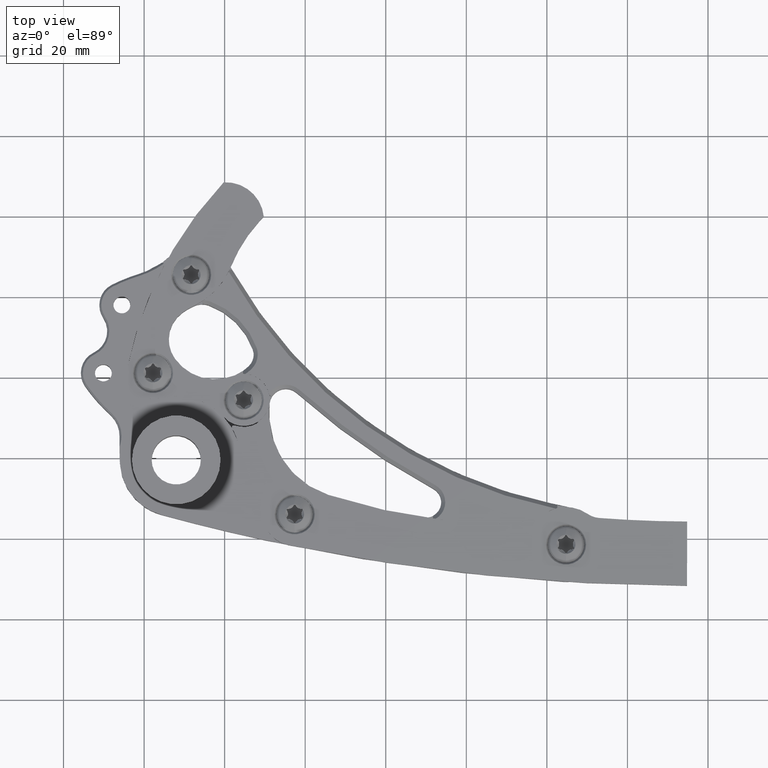
[diagram: clean part render]
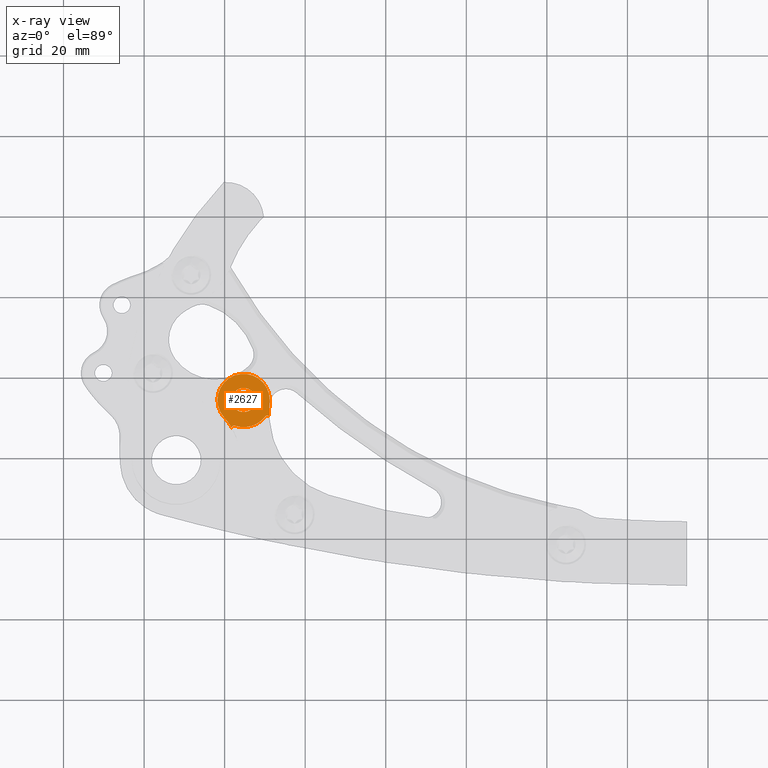
[diagram: x-ray — body ghosted, one internal face saturated and labeled with its STEP entity id]
A machine part, top view, then the same camera in x-ray: the body is ghosted and one INTERNAL B-rep face — a face not visible from any outside direction — is saturated and labeled: STEP entity #2627.
In plain terms, the highlighted planar face has unit normal (0, 0, -1).
Its self-contained STEP definition (entity closure, byte-faithful):
#75 = AXIS2_PLACEMENT_3D ( 'NONE', #3867, #373, #6837 ) ;
#369 = DIRECTION ( 'NONE',  ( 0.0000000000000000000, 0.0000000000000000000, -1.000000000000000000 ) ) ;
#373 = DIRECTION ( 'NONE',  ( -0.0000000000000000000, -0.0000000000000000000, 1.000000000000000000 ) ) ;
#523 = CIRCLE ( 'NONE', #6834, 0.8364791617790193756 ) ;
#582 = EDGE_CURVE ( 'NONE', #7625, #8082, #523, .T. ) ;
#745 = CARTESIAN_POINT ( 'NONE',  ( 0.9145700963486043111, 0.5923259528790497663, 0.1574803149606300579 ) ) ;
#914 = DIRECTION ( 'NONE',  ( 1.000000000000000000, 0.0000000000000000000, 0.0000000000000000000 ) ) ;
#955 = CIRCLE ( 'NONE', #8458, 0.1181102362204724116 ) ;
#1007 = CARTESIAN_POINT ( 'NONE',  ( 0.5701528258913531877, 0.3415842335883935710, 0.1574803149606300579 ) ) ;
#1047 = DIRECTION ( 'NONE',  ( -0.0000000000000000000, -0.0000000000000000000, 1.000000000000000000 ) ) ;
#1080 = EDGE_CURVE ( 'NONE', #8082, #1192, #1104, .T. ) ;
#1104 = CIRCLE ( 'NONE', #75, 0.01968503937007875723 ) ;
#1128 = CARTESIAN_POINT ( 'NONE',  ( 0.6586645845375798114, 0.5923259528790497663, 0.1574803149606300579 ) ) ;
#1164 = DIRECTION ( 'NONE',  ( 0.0000000000000000000, 0.0000000000000000000, -1.000000000000000000 ) ) ;
#1192 = VERTEX_POINT ( 'NONE', #6722 ) ;
#1706 = AXIS2_PLACEMENT_3D ( 'NONE', #3750, #3035, #7339 ) ;
#1714 = DIRECTION ( 'NONE',  ( 1.000000000000000000, 0.0000000000000000000, 0.0000000000000000000 ) ) ;
#1768 = DIRECTION ( 'NONE',  ( 1.000000000000000000, 0.0000000000000000000, 0.0000000000000000000 ) ) ;
#1815 = EDGE_CURVE ( 'NONE', #7021, #6680, #8641, .T. ) ;
#1887 = CARTESIAN_POINT ( 'NONE',  ( 0.6586645845375798114, 0.5923259528790497663, 0.1574803149606300579 ) ) ;
#1950 = VERTEX_POINT ( 'NONE', #3134 ) ;
#2226 = CARTESIAN_POINT ( 'NONE',  ( 0.0000000000000000000, 0.0000000000000000000, 0.1574803149606300579 ) ) ;
#2263 = DIRECTION ( 'NONE',  ( -0.0000000000000000000, -0.0000000000000000000, 1.000000000000000000 ) ) ;
#2493 = FACE_OUTER_BOUND ( 'NONE', #8584, .T. ) ;
#2601 = EDGE_CURVE ( 'NONE', #6286, #7021, #8281, .T. ) ;
#2602 = CIRCLE ( 'NONE', #4747, 0.2559055118110245552 ) ;
#2627 = ADVANCED_FACE ( 'NONE', ( #2493, #4001 ), #7853, .F. ) ;
#2701 = EDGE_LOOP ( 'NONE', ( #6258, #6646 ) ) ;
#2810 = ORIENTED_EDGE ( 'NONE', *, *, #9662, .T. ) ;
#2827 = CARTESIAN_POINT ( 'NONE',  ( 0.5439152429436742153, 0.3230217728769143593, 0.1574803149606300579 ) ) ;
#3035 = DIRECTION ( 'NONE',  ( -0.0000000000000000000, -0.0000000000000000000, 1.000000000000000000 ) ) ;
#3054 = DIRECTION ( 'NONE',  ( 1.000000000000000000, 0.0000000000000000000, 0.0000000000000000000 ) ) ;
#3134 = CARTESIAN_POINT ( 'NONE',  ( 0.5405543483171074692, 0.5923259528790497663, 0.1574803149606300579 ) ) ;
#3136 = VERTEX_POINT ( 'NONE', #8462 ) ;
#3167 = DIRECTION ( 'NONE',  ( 1.000000000000000000, 1.868163743359631279E-15, 0.0000000000000000000 ) ) ;
#3168 = CARTESIAN_POINT ( 'NONE',  ( 0.6586645845375798114, 0.5923259528790497663, 0.1574803149606300579 ) ) ;
#3237 = DIRECTION ( 'NONE',  ( 1.000000000000000000, 0.0000000000000000000, 0.0000000000000000000 ) ) ;
#3285 = EDGE_CURVE ( 'NONE', #3136, #8109, #2602, .T. ) ;
#3512 = VERTEX_POINT ( 'NONE', #4544 ) ;
#3542 = CARTESIAN_POINT ( 'NONE',  ( 0.5636002823137529205, 0.3230217728769143593, 0.1574803149606300579 ) ) ;
#3545 = AXIS2_PLACEMENT_3D ( 'NONE', #1887, #1164, #1714 ) ;
#3549 = AXIS2_PLACEMENT_3D ( 'NONE', #3640, #9589, #9560 ) ;
#3640 = CARTESIAN_POINT ( 'NONE',  ( 0.6586645845375798114, 0.5923259528790497663, 0.1574803149606300579 ) ) ;
#3750 = CARTESIAN_POINT ( 'NONE',  ( 0.5636002823137529205, 0.3230217728769143593, 0.1574803149606300579 ) ) ;
#3867 = CARTESIAN_POINT ( 'NONE',  ( 0.8877492979117309613, 0.4217910385001784612, 0.1574803149606300579 ) ) ;
#3899 = CARTESIAN_POINT ( 'NONE',  ( 0.6586645845375798114, 0.5923259528790497663, 0.1574803149606300579 ) ) ;
#3952 = CARTESIAN_POINT ( 'NONE',  ( 0.6586645845375798114, 0.5923259528790497663, 0.1574803149606300579 ) ) ;
#4001 = FACE_BOUND ( 'NONE', #2701, .T. ) ;
#4275 = AXIS2_PLACEMENT_3D ( 'NONE', #2226, #1047, #1768 ) ;
#4349 = CIRCLE ( 'NONE', #5283, 0.2659055118110237315 ) ;
#4484 = CARTESIAN_POINT ( 'NONE',  ( 0.9126951216396621547, 0.5614048080928358830, 0.1574803149606300579 ) ) ;
#4544 = CARTESIAN_POINT ( 'NONE',  ( 0.4683837045600565685, 0.4212095664917691051, 0.1574803149606300579 ) ) ;
#4650 = DIRECTION ( 'NONE',  ( 1.000000000000000000, 0.0000000000000000000, 0.0000000000000000000 ) ) ;
#4734 = ORIENTED_EDGE ( 'NONE', *, *, #8838, .F. ) ;
#4747 = AXIS2_PLACEMENT_3D ( 'NONE', #6966, #6747, #3054 ) ;
#4909 = ORIENTED_EDGE ( 'NONE', *, *, #582, .F. ) ;
#5283 = AXIS2_PLACEMENT_3D ( 'NONE', #3952, #8493, #3237 ) ;
#5375 = CARTESIAN_POINT ( 'NONE',  ( 1.743045547613837343, 0.4603327636144783908, 0.1574803149606300579 ) ) ;
#5432 = DIRECTION ( 'NONE',  ( 0.0000000000000000000, 0.0000000000000000000, -1.000000000000000000 ) ) ;
#5677 = CIRCLE ( 'NONE', #3549, 0.2559055118110245552 ) ;
#5701 = DIRECTION ( 'NONE',  ( 1.000000000000000000, 0.0000000000000000000, 0.0000000000000000000 ) ) ;
#5841 = ORIENTED_EDGE ( 'NONE', *, *, #1815, .F. ) ;
#6154 = EDGE_CURVE ( 'NONE', #8109, #7625, #5677, .T. ) ;
#6231 = AXIS2_PLACEMENT_3D ( 'NONE', #3899, #369, #914 ) ;
#6239 = CIRCLE ( 'NONE', #4275, 0.6299212598425188991 ) ;
#6258 = ORIENTED_EDGE ( 'NONE', *, *, #8582, .T. ) ;
#6286 = VERTEX_POINT ( 'NONE', #1007 ) ;
#6646 = ORIENTED_EDGE ( 'NONE', *, *, #9345, .T. ) ;
#6680 = VERTEX_POINT ( 'NONE', #6758 ) ;
#6689 = ORIENTED_EDGE ( 'NONE', *, *, #3285, .F. ) ;
#6722 = CARTESIAN_POINT ( 'NONE',  ( 0.8719590640149738059, 0.4335455818127563199, 0.1574803149606300579 ) ) ;
#6747 = DIRECTION ( 'NONE',  ( 0.0000000000000000000, 0.0000000000000000000, -1.000000000000000000 ) ) ;
#6758 = CARTESIAN_POINT ( 'NONE',  ( 0.5465214858800029329, 0.3132332343048863654, 0.1574803149606300579 ) ) ;
#6834 = AXIS2_PLACEMENT_3D ( 'NONE', #5375, #2263, #5701 ) ;
#6837 = DIRECTION ( 'NONE',  ( 1.000000000000000000, 0.0000000000000000000, 0.0000000000000000000 ) ) ;
#6966 = CARTESIAN_POINT ( 'NONE',  ( 0.6586645845375798114, 0.5923259528790497663, 0.1574803149606300579 ) ) ;
#7021 = VERTEX_POINT ( 'NONE', #2827 ) ;
#7149 = ORIENTED_EDGE ( 'NONE', *, *, #2601, .F. ) ;
#7334 = ORIENTED_EDGE ( 'NONE', *, *, #1080, .F. ) ;
#7339 = DIRECTION ( 'NONE',  ( 1.000000000000000000, 0.0000000000000000000, 0.0000000000000000000 ) ) ;
#7598 = VERTEX_POINT ( 'NONE', #9060 ) ;
#7625 = VERTEX_POINT ( 'NONE', #4484 ) ;
#7667 = DIRECTION ( 'NONE',  ( 0.0000000000000000000, 0.0000000000000000000, -1.000000000000000000 ) ) ;
#7819 = DIRECTION ( 'NONE',  ( 1.000000000000000000, 0.0000000000000000000, 0.0000000000000000000 ) ) ;
#7834 = ORIENTED_EDGE ( 'NONE', *, *, #6154, .F. ) ;
#7853 = PLANE ( 'NONE',  #6231 ) ;
#7902 = EDGE_CURVE ( 'NONE', #3512, #3136, #9336, .T. ) ;
#7922 = CIRCLE ( 'NONE', #3545, 0.1181102362204724116 ) ;
#8082 = VERTEX_POINT ( 'NONE', #9330 ) ;
#8109 = VERTEX_POINT ( 'NONE', #745 ) ;
#8281 = CIRCLE ( 'NONE', #1706, 0.01968503937007875723 ) ;
#8295 = AXIS2_PLACEMENT_3D ( 'NONE', #1128, #5432, #3167 ) ;
#8358 = DIRECTION ( 'NONE',  ( -0.0000000000000000000, -0.0000000000000000000, 1.000000000000000000 ) ) ;
#8458 = AXIS2_PLACEMENT_3D ( 'NONE', #3168, #7667, #4650 ) ;
#8462 = CARTESIAN_POINT ( 'NONE',  ( 0.4027590727265552561, 0.5923259528790497663, 0.1574803149606300579 ) ) ;
#8493 = DIRECTION ( 'NONE',  ( -0.0000000000000000000, -0.0000000000000000000, 1.000000000000000000 ) ) ;
#8582 = EDGE_CURVE ( 'NONE', #1950, #7598, #7922, .T. ) ;
#8584 = EDGE_LOOP ( 'NONE', ( #4909, #7834, #6689, #9272, #4734, #5841, #7149, #2810, #7334 ) ) ;
#8615 = AXIS2_PLACEMENT_3D ( 'NONE', #3542, #8358, #7819 ) ;
#8641 = CIRCLE ( 'NONE', #8615, 0.01968503937007875723 ) ;
#8838 = EDGE_CURVE ( 'NONE', #6680, #3512, #6239, .T. ) ;
#9060 = CARTESIAN_POINT ( 'NONE',  ( 0.7767748207580520425, 0.5923259528790497663, 0.1574803149606300579 ) ) ;
#9272 = ORIENTED_EDGE ( 'NONE', *, *, #7902, .F. ) ;
#9330 = CARTESIAN_POINT ( 'NONE',  ( 0.9074143812285404564, 0.4226771948884593955, 0.1574803149606300579 ) ) ;
#9336 = CIRCLE ( 'NONE', #8295, 0.2559055118110245552 ) ;
#9345 = EDGE_CURVE ( 'NONE', #7598, #1950, #955, .T. ) ;
#9560 = DIRECTION ( 'NONE',  ( 1.000000000000000000, 0.0000000000000000000, 0.0000000000000000000 ) ) ;
#9589 = DIRECTION ( 'NONE',  ( 0.0000000000000000000, 0.0000000000000000000, -1.000000000000000000 ) ) ;
#9662 = EDGE_CURVE ( 'NONE', #6286, #1192, #4349, .T. ) ;